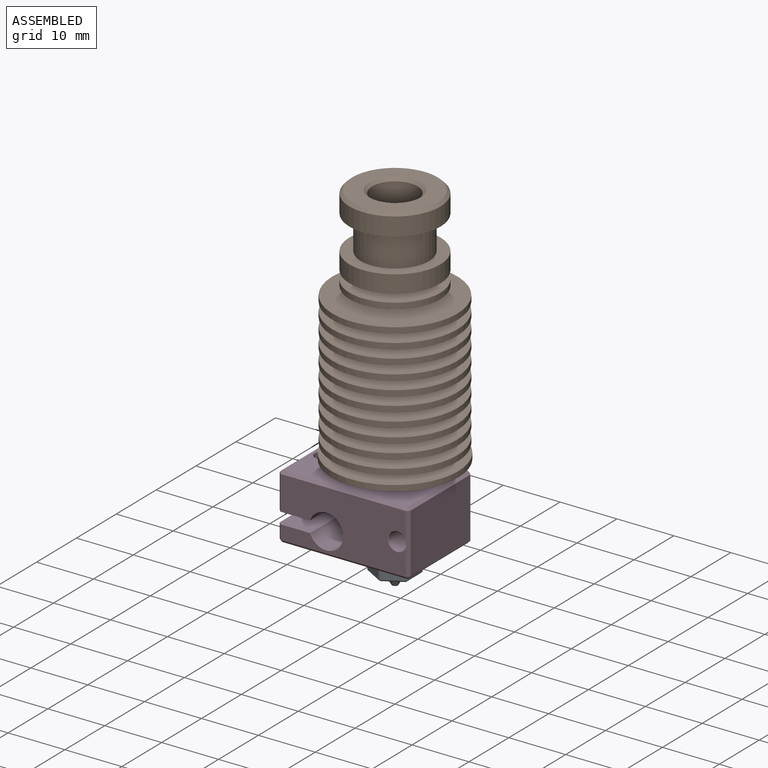
[diagram: assembled view]
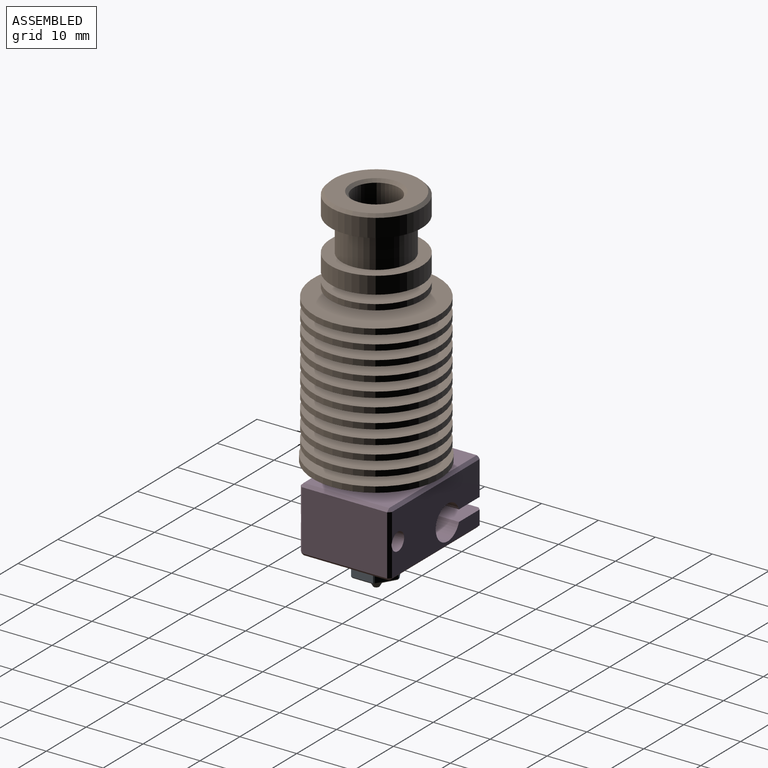
[diagram: assembled view, second angle]
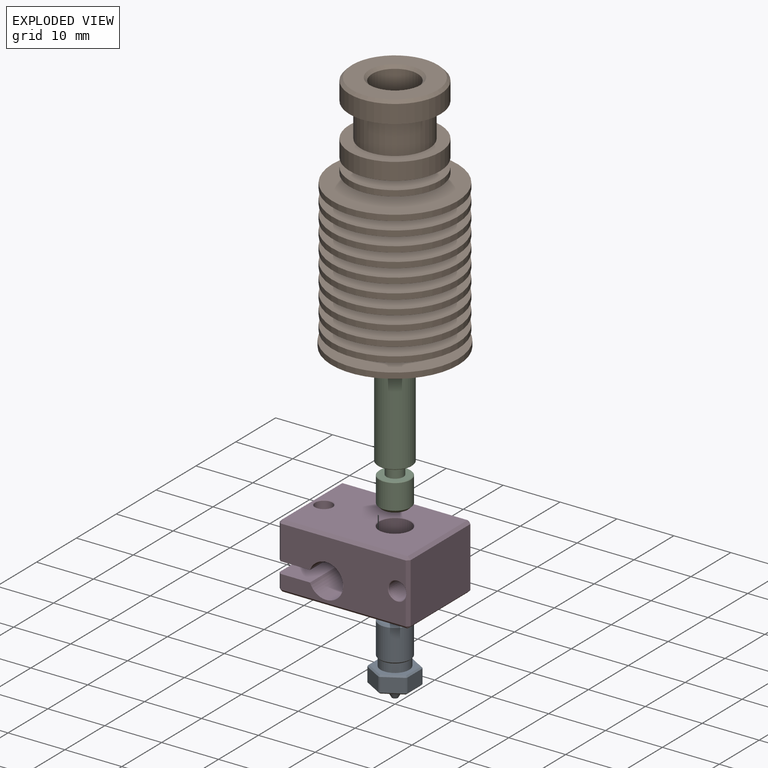
[diagram: exploded view]
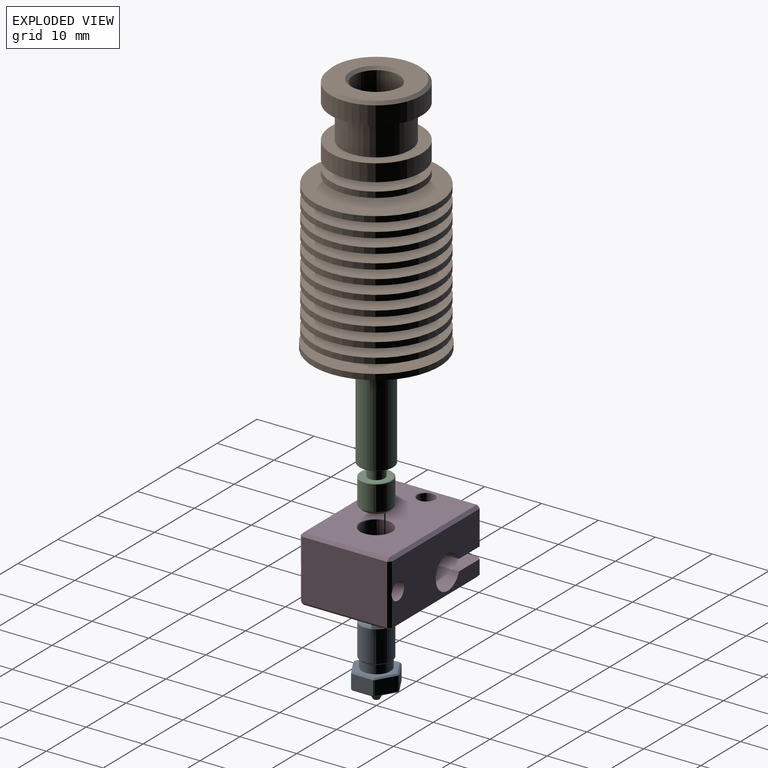
[diagram: exploded view, second angle]
ASSEMBLY  parts=4 mates=3
PART A: 50 faces, bbox 7x7.9x12.5 mm
  f0: plane 7.51x6.5mm, normal (0,0,1), area 17mm2, adj f2,f19,f20,f21,f30,f31,f35
  f1: plane 7.51x6.5mm, normal (0,0,-1), area 26.4mm2, adj f5,f6,f9,f12,f17,f23,f28
  f2: cylinder r=2.5mm len=5mm, axis (0,0,-1), area 23.6mm2, adj f0,f37
  f3: cylinder r=2.75mm len=5.5mm, axis (0,0,-1), area 95mm2, adj f36,f37
  f4: plane 5x5mm, normal (0,0,1), area 14.3mm2, adj f36,f45
  f5: cone r=1.8mm half-angle=60deg, axis (0,0,1), area 2.7mm2, adj f1,f38
  f6: plane 3.75x0.25mm, normal (-0.71,0,-0.71), area 1.3mm2, adj f1,f7,f8,f39
  f7: plane 0.25x0.25mm, normal (-0.65,-0.38,-0.65), area 0mm2, adj f6,f9,f10
  f8: plane 0.25x0.25mm, normal (-0.65,0.38,-0.65), area 0mm2, adj f6,f11,f12
  f9: plane 3.38x2.09mm, normal (-0.35,-0.61,-0.71), area 1.3mm2, adj f1,f7,f13,f40
  f10: plane 2.5x0.22mm, normal (-0.87,-0.5,0), area 0.6mm2, adj f7,f14,f39,f40
  f11: plane 2.5x0.22mm, normal (-0.87,0.5,0), area 0.6mm2, adj f8,f15,f39,f44
  f12: plane 3.38x2.09mm, normal (-0.35,0.61,-0.71), area 1.3mm2, adj f1,f8,f16,f44
  f13: plane 0.25x0.25mm, normal (0,-0.76,-0.65), area 0mm2, adj f9,f17,f18
  f14: plane 0.25x0.25mm, normal (-0.65,-0.38,0.65), area 0mm2, adj f10,f19,f20
  f15: plane 0.25x0.25mm, normal (-0.65,0.38,0.65), area 0mm2, adj f11,f20,f21
  f16: plane 0.25x0.25mm, normal (0,0.76,-0.65), area 0mm2, adj f12,f22,f23
  f17: plane 3.38x2.09mm, normal (0.35,-0.61,-0.71), area 1.3mm2, adj f1,f13,f24,f41
  f18: plane 2.5x0.25mm, normal (0,-1,0), area 0.6mm2, adj f13,f25,f40,f41
  f19: plane 3.38x2.09mm, normal (-0.35,-0.61,0.71), area 1.3mm2, adj f0,f14,f25,f40
  f20: plane 3.75x0.25mm, normal (-0.71,0,0.71), area 1.3mm2, adj f0,f14,f15,f39
  f21: plane 3.38x2.09mm, normal (-0.35,0.61,0.71), area 1.3mm2, adj f0,f15,f26,f44
  f22: plane 2.5x0.25mm, normal (0,1,0), area 0.6mm2, adj f16,f26,f43,f44
  f23: plane 3.38x2.09mm, normal (0.35,0.61,-0.71), area 1.3mm2, adj f1,f16,f27,f43
  f24: plane 0.25x0.25mm, normal (0.65,-0.38,-0.65), area 0mm2, adj f17,f28,f29
  f25: plane 0.25x0.25mm, normal (0,-0.76,0.65), area 0mm2, adj f18,f19,f30
  f26: plane 0.25x0.25mm, normal (0,0.76,0.65), area 0mm2, adj f21,f22,f31
  f27: plane 0.25x0.25mm, normal (0.65,0.38,-0.65), area 0mm2, adj f23,f28,f32
  f28: plane 3.75x0.25mm, normal (0.71,0,-0.71), area 1.3mm2, adj f1,f24,f27,f42
  f29: plane 2.5x0.22mm, normal (0.87,-0.5,0), area 0.6mm2, adj f24,f33,f41,f42
  f30: plane 3.38x2.09mm, normal (0.35,-0.61,0.71), area 1.3mm2, adj f0,f25,f33,f41
  f31: plane 3.38x2.09mm, normal (0.35,0.61,0.71), area 1.3mm2, adj f0,f26,f34,f43
  f32: plane 2.5x0.22mm, normal (0.87,0.5,0), area 0.6mm2, adj f27,f34,f42,f43
  f33: plane 0.25x0.25mm, normal (0.65,-0.38,0.65), area 0mm2, adj f29,f30,f35
  f34: plane 0.25x0.25mm, normal (0.65,0.38,0.65), area 0mm2, adj f31,f32,f35
  f35: plane 3.75x0.25mm, normal (0.71,0,0.71), area 1.3mm2, adj f0,f33,f34,f42
  f36: cone r=2.5mm half-angle=45deg, axis (0,0,-1), area 5.8mm2, adj f3,f4
  f37: cone r=2.75mm half-angle=45deg, axis (0,0,1), area 5.8mm2, adj f2,f3
  f38: cone r=1.65mm half-angle=30deg, axis (0,0,1), area 14.2mm2, adj f5,f49
  f39: plane 3.75x2.5mm, normal (-1,0,0), area 9.4mm2, adj f6,f10,f11,f20
  f40: plane 3.25x2.5mm, normal (-0.5,-0.87,0), area 9.4mm2, adj f9,f10,f18,f19
  f41: plane 3.25x2.5mm, normal (0.5,-0.87,0), area 9.4mm2, adj f17,f18,f29,f30
  f42: plane 3.75x2.5mm, normal (1,0,0), area 9.4mm2, adj f28,f29,f32,f35
  f43: plane 3.25x2.5mm, normal (0.5,0.87,0), area 9.4mm2, adj f22,f23,f31,f32
  f44: plane 3.25x2.5mm, normal (-0.5,0.87,0), area 9.4mm2, adj f11,f12,f21,f22
  f45: cone r=1.3mm half-angle=30deg, axis (0,0,1), area 4.3mm2, adj f4,f46
  f46: cylinder r=1mm len=9.99mm, axis (0,0,-1), area 62.8mm2, adj f45,f47
  f47: cone r=0.2mm half-angle=30deg, axis (0,0,1), area 6mm2, adj f46,f48
  f48: cylinder r=0.2mm len=0.6mm, axis (0,0,-1), area 0.8mm2, adj f47,f49
  f49: plane 1x1mm, normal (0,0,-1), area 0.7mm2, adj f38,f48
PART B: 63 faces, bbox 22.3x22.3x42.7 mm
  f0: cylinder r=4mm len=8mm, axis (0,0,1), area 150.8mm2, adj f59,f62
  f1: plane 15x15mm, normal (0,0,1), area 113.1mm2, adj f61,f62
  f2: cylinder r=8mm len=16mm, axis (0,0,1), area 160.8mm2, adj f3,f61
  f3: plane 16x16mm, normal (0,0,-1), area 88mm2, adj f2,f4
  f4: cylinder r=6mm len=12mm, axis (0,0,1), area 226.2mm2, adj f3,f5
  f5: plane 16x16mm, normal (0,0,1), area 88mm2, adj f4,f6
  f6: cylinder r=8mm len=16mm, axis (0,0,1), area 150.8mm2, adj f5,f7
  f7: plane 16x16mm, normal (0,0,-1), area 150.8mm2, adj f6,f8
  f8: cylinder r=4mm len=8mm, axis (0,0,1), area 37.7mm2, adj f7,f9
  f9: plane 16x16mm, normal (0,0,1), area 150.8mm2, adj f8,f10
  f10: cylinder r=8mm len=16mm, axis (0,0,1), area 50.3mm2, adj f9,f11
  f11: plane 16x16mm, normal (0,0,-1), area 150.8mm2, adj f10,f12
  f12: cylinder r=4mm len=8mm, axis (0,0,1), area 37.7mm2, adj f11,f13
  f13: plane 22x22mm, normal (0,0,1), area 329.9mm2, adj f12,f14
  f14: cylinder r=11mm len=22mm, axis (0,0,1), area 69.1mm2, adj f13,f15
  f15: plane 22x22mm, normal (0,0,-1), area 324.9mm2, adj f14,f16
  f16: cylinder r=4.19mm len=8.38mm, axis (0,0,1), area 39.5mm2, adj f15,f17
  f17: plane 22x22mm, normal (0,0,1), area 324.9mm2, adj f16,f18
  f18: cylinder r=11mm len=22mm, axis (0,0,1), area 69.1mm2, adj f17,f19
  f19: plane 22x22mm, normal (0,0,-1), area 319.7mm2, adj f18,f20
  f20: cylinder r=4.38mm len=8.77mm, axis (0,0,1), area 41.3mm2, adj f19,f21
  f21: plane 22x22mm, normal (0,0,1), area 319.7mm2, adj f20,f22
  f22: cylinder r=11mm len=22mm, axis (0,0,1), area 69.1mm2, adj f21,f23
  f23: plane 22x22mm, normal (0,0,-1), area 314.3mm2, adj f22,f24
  f24: cylinder r=4.58mm len=9.15mm, axis (0,0,1), area 43.1mm2, adj f23,f25
  f25: plane 22x22mm, normal (0,0,1), area 314.3mm2, adj f24,f26
  f26: cylinder r=11mm len=22mm, axis (0,0,1), area 69.1mm2, adj f25,f27
  f27: plane 22x22mm, normal (0,0,-1), area 308.7mm2, adj f26,f28
  f28: cylinder r=4.77mm len=9.54mm, axis (0,0,1), area 44.9mm2, adj f27,f29
  f29: plane 22x22mm, normal (0,0,1), area 308.7mm2, adj f28,f30
  f30: cylinder r=11mm len=22mm, axis (0,0,1), area 69.1mm2, adj f29,f31
  f31: plane 22x22mm, normal (0,0,-1), area 302.8mm2, adj f30,f32
  f32: cylinder r=4.96mm len=9.92mm, axis (0,0,1), area 46.8mm2, adj f31,f33
  f33: plane 22x22mm, normal (0,0,1), area 302.8mm2, adj f32,f34
  f34: cylinder r=11mm len=22mm, axis (0,0,1), area 69.1mm2, adj f33,f35
  f35: plane 22x22mm, normal (0,0,-1), area 296.7mm2, adj f34,f36
  f36: cylinder r=5.15mm len=10.31mm, axis (0,0,1), area 48.6mm2, adj f35,f37
  f37: plane 22x22mm, normal (0,0,1), area 296.7mm2, adj f36,f38
  f38: cylinder r=11mm len=22mm, axis (0,0,1), area 69.1mm2, adj f37,f39
  f39: plane 22x22mm, normal (0,0,-1), area 290.3mm2, adj f38,f40
  f40: cylinder r=5.35mm len=10.69mm, axis (0,0,1), area 50.4mm2, adj f39,f41
  f41: plane 22x22mm, normal (0,0,1), area 290.3mm2, adj f40,f42
  f42: cylinder r=11mm len=22mm, axis (0,0,1), area 69.1mm2, adj f41,f43
  f43: plane 22x22mm, normal (0,0,-1), area 283.8mm2, adj f42,f44
  f44: cylinder r=5.54mm len=11.08mm, axis (0,0,1), area 52.2mm2, adj f43,f45
  f45: plane 22x22mm, normal (0,0,1), area 283.8mm2, adj f44,f46
  f46: cylinder r=11mm len=22mm, axis (0,0,1), area 69.1mm2, adj f45,f47
  f47: plane 22x22mm, normal (0,0,-1), area 277mm2, adj f46,f48
  f48: cylinder r=5.73mm len=11.46mm, axis (0,0,1), area 54mm2, adj f47,f49
  f49: plane 22x22mm, normal (0,0,1), area 277mm2, adj f48,f50
  f50: cylinder r=11mm len=22mm, axis (0,0,1), area 69.1mm2, adj f49,f51
  f51: plane 22x22mm, normal (0,0,-1), area 269.9mm2, adj f50,f52
  f52: cylinder r=5.92mm len=11.85mm, axis (0,0,1), area 55.8mm2, adj f51,f53
  f53: plane 22.3x22.3mm, normal (0,0,1), area 280.4mm2, adj f52,f54
  f54: cylinder r=11.15mm len=22.3mm, axis (0,0,1), area 70.1mm2, adj f53,f55
  f55: plane 22.3x22.3mm, normal (0,0,-1), area 362.3mm2, adj f54,f56
  f56: cylinder r=3mm len=15.1mm, axis (0,0,1), area 284.6mm2, adj f55,f57
  f57: plane 6x6mm, normal (0,0,-1), area 7mm2, adj f56,f60
  f58: cylinder r=2.1mm len=19.1mm, axis (0,0,1), area 252mm2, adj f59,f60
  f59: cone r=4mm half-angle=51.7deg, axis (0,0,1), area 46.4mm2, adj f0,f58
  f60: cone r=2.6mm half-angle=45deg, axis (0,0,-1), area 10.4mm2, adj f57,f58
  f61: cone r=7.5mm half-angle=45deg, axis (0,0,-1), area 34.4mm2, adj f1,f2
  f62: cone r=4mm half-angle=45deg, axis (0,0,1), area 18.9mm2, adj f0,f1
PART C: 17 faces, bbox 6x6x22.1 mm
  f0: plane 5.8x5.8mm, normal (0,0,-1), area 19.5mm2, adj f1,f13
  f1: cylinder r=1.48mm len=2.96mm, axis (0,0,1), area 19.5mm2, adj f0,f2
  f2: plane 5.3x5.3mm, normal (0,0,1), area 15.2mm2, adj f1,f14
  f3: cylinder r=2.75mm len=5.5mm, axis (0,0,1), area 76mm2, adj f11,f14
  f4: plane 4.5x4.5mm, normal (0,0,-1), area 12.1mm2, adj f11,f15
  f5: cylinder r=1mm len=16.5mm, axis (0,0,1), area 103.7mm2, adj f10,f15
  f6: plane 4.1x4.1mm, normal (0,0,1), area 6.1mm2, adj f7,f10
  f7: cylinder r=2.05mm len=4.9mm, axis (0,0,1), area 63.1mm2, adj f6,f16
  f8: plane 5x5mm, normal (0,0,1), area 5.1mm2, adj f12,f16
  f9: cylinder r=3mm len=14.4mm, axis (0,0,1), area 271.4mm2, adj f12,f13
  f10: cone r=1mm half-angle=45deg, axis (0,0,1), area 5.6mm2, adj f5,f6
  f11: cone r=2.75mm half-angle=45deg, axis (0,0,1), area 11.1mm2, adj f3,f4
  f12: cone r=2.5mm half-angle=45deg, axis (0,0,-1), area 12.2mm2, adj f8,f9
  f13: cone r=3mm half-angle=45deg, axis (0,0,1), area 2.6mm2, adj f0,f9
  f14: cone r=2.65mm half-angle=45deg, axis (0,0,-1), area 2.4mm2, adj f2,f3
  f15: cone r=1.1mm half-angle=45deg, axis (0,0,-1), area 0.9mm2, adj f4,f5
  f16: cone r=2.05mm half-angle=45deg, axis (0,0,1), area 1.9mm2, adj f7,f8
PART D: 43 faces, bbox 23x16x11.5 mm
  f0: plane 22x10.5mm, normal (0,1,0), area 185.1mm2, adj f7,f8,f9,f10,f19,f26,f30,f33
  f1: plane 15x2.5mm, normal (-1,0,0), area 37.5mm2, adj f10,f22,f30,f31
  f2: plane 22x10.5mm, normal (0,-1,0), area 184.2mm2, adj f8,f9,f10,f15,f17,f22,f23,f24
  f3: plane 15x6mm, normal (-1,0,0), area 90mm2, adj f9,f15,f18,f19
  f4: plane 15x10.5mm, normal (1,0,0), area 157.5mm2, adj f24,f25,f32,f33
  f5: plane 22x15mm, normal (0,0,1), area 296.4mm2, adj f17,f18,f25,f26,f41,f42
  f6: plane 22x15mm, normal (0,0,-1), area 288.5mm2, adj f23,f31,f32,f36,f37,f38,f39
  f7: cylinder r=1.55mm len=15.9mm, axis (0,1,0), area 146.2mm2, adj f0,f14,f33,f40
  f8: cylinder r=3mm len=16mm, axis (0,1,0), area 269mm2, adj f0,f2,f9,f10
  f9: plane 16x5.67mm, normal (0,0,-1), area 83.4mm2, adj f0,f2,f3,f8,f12,f15,f19
  f10: plane 16x5.67mm, normal (0,0,1), area 83.4mm2, adj f0,f1,f2,f8,f11,f22,f30
  f11: cylinder r=1.5mm len=3mm, axis (0,0,1), area 27.3mm2, adj f10,f37
  f12: cylinder r=1.5mm len=6.4mm, axis (0,0,1), area 60.3mm2, adj f9,f41
  f13: cylinder r=2.75mm len=11.3mm, axis (0,0,1), area 195.2mm2, adj f38,f42
  f14: cylinder r=1.5mm len=5.26mm, axis (0,0,-1), area 43.3mm2, adj f7,f39
  f15: plane 6x0.5mm, normal (-0.71,-0.71,0), area 4.2mm2, adj f2,f3,f9,f16
  f16: plane 0.5x0.5mm, normal (-0.58,-0.58,0.58), area 0.2mm2, adj f15,f17,f18
  f17: plane 22x0.5mm, normal (0,-0.71,0.71), area 15.6mm2, adj f2,f5,f16,f20
  f18: plane 15x0.5mm, normal (-0.71,0,0.71), area 10.6mm2, adj f3,f5,f16,f21
  f19: plane 6x0.5mm, normal (-0.71,0.71,0), area 4.2mm2, adj f0,f3,f9,f21
  f20: plane 0.5x0.5mm, normal (0.58,-0.58,0.58), area 0.2mm2, adj f17,f24,f25
  f21: plane 0.5x0.5mm, normal (-0.58,0.58,0.58), area 0.2mm2, adj f18,f19,f26
  f22: plane 2.5x0.5mm, normal (-0.71,-0.71,0), area 1.8mm2, adj f1,f2,f10,f27
  f23: plane 22x0.5mm, normal (0,-0.71,-0.71), area 15.6mm2, adj f2,f6,f27,f28
  f24: plane 10.5x0.5mm, normal (0.71,-0.71,0), area 7.3mm2, adj f2,f4,f20,f28,f40
  f25: plane 15x0.5mm, normal (0.71,0,0.71), area 10.6mm2, adj f4,f5,f20,f29
  f26: plane 22x0.5mm, normal (0,0.71,0.71), area 15.6mm2, adj f0,f5,f21,f29
  f27: plane 0.5x0.5mm, normal (-0.58,-0.58,-0.58), area 0.2mm2, adj f22,f23,f31
  f28: plane 0.5x0.5mm, normal (0.58,-0.58,-0.58), area 0.2mm2, adj f23,f24,f32
  f29: plane 0.5x0.5mm, normal (0.58,0.58,0.58), area 0.2mm2, adj f25,f26,f33
  f30: plane 2.5x0.5mm, normal (-0.71,0.71,0), area 1.8mm2, adj f0,f1,f10,f34
  f31: plane 15x0.5mm, normal (-0.71,0,-0.71), area 10.6mm2, adj f1,f6,f27,f34
  f32: plane 15x0.5mm, normal (0.71,0,-0.71), area 10.6mm2, adj f4,f6,f28,f35,f39
  f33: plane 10.5x0.5mm, normal (0.71,0.71,0), area 7.4mm2, adj f0,f4,f7,f29,f35
  f34: plane 0.5x0.5mm, normal (-0.58,0.58,-0.58), area 0.2mm2, adj f30,f31,f36
  f35: plane 0.5x0.5mm, normal (0.58,0.58,-0.58), area 0.2mm2, adj f32,f33,f36
  f36: plane 22x0.5mm, normal (0,0.71,-0.71), area 15.6mm2, adj f0,f6,f34,f35
  f37: cone r=1.6mm half-angle=45deg, axis (0,0,-1), area 1.4mm2, adj f6,f11
  f38: cone r=2.85mm half-angle=45deg, axis (0,0,-1), area 2.5mm2, adj f6,f13
  f39: cone r=1.5mm half-angle=45deg, axis (0,0,-1), area 1.3mm2, adj f6,f14,f32
  f40: cone r=1.55mm half-angle=45deg, axis (0,-1,0), area 1.3mm2, adj f2,f7,f24
  f41: cone r=1.5mm half-angle=45deg, axis (0,0,1), area 1.4mm2, adj f5,f12
  f42: cone r=2.75mm half-angle=45deg, axis (0,0,1), area 2.5mm2, adj f5,f13
PLACE A t=(0,0,-19.82)mm
PLACE B t=(0,0,0.18)mm fixed
PLACE C t=(0,0,-7.32)mm
PLACE D t=(-3.5,0,-8.32)mm
MATE fastened C.f1 <-> D.f13  axis (0,0,1) through (0,0,-2.32)mm
MATE fastened A.f2 <-> D.f13  axis (0,0,-1) through (0,0,-13.07)mm
MATE fastened C.f1 <-> B.f0  axis (0,0,1) through (0,0,14.78)mm
